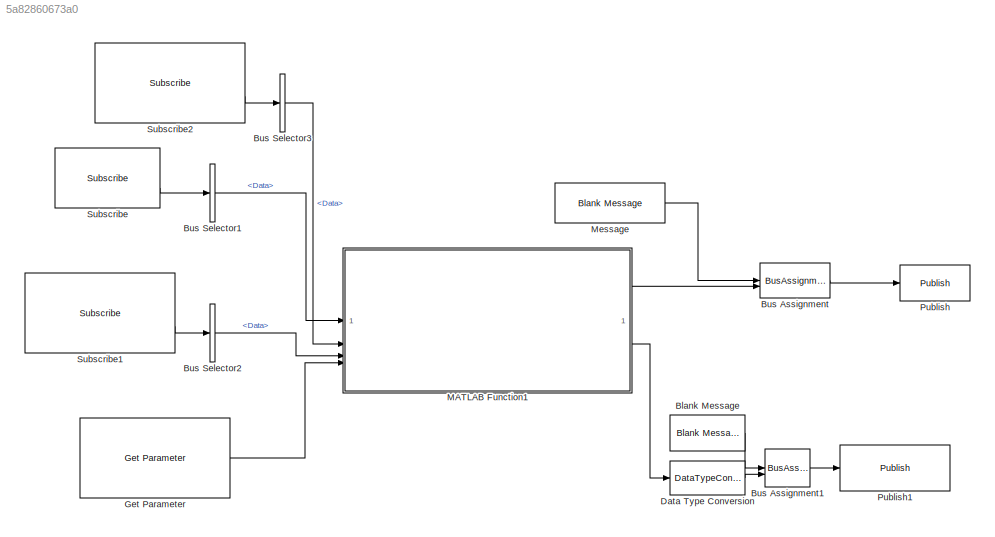
MODEL slx_5a82860673a0
KIND model
CONFIG AbsTol = auto
CONFIG EnableMultiTasking = off
CONFIG FixedStep = auto
CONFIG MaxStep = auto
CONFIG MinStep = auto
CONFIG RelTol = 1e-3
CONFIG SampleTimeConstraint = Unconstrained
CONFIG SolverName = FixedStepAuto
CONFIG StartTime = 0.0
CONFIG StopTime = 100.0
BLOCK [Reference] Blank Message  REF=robotlib/Blank Message
  LibrarySourceBlock = roslib/ROS/Blank Message
  SourceBlock = robotlib/Blank Message
  SourceType = ROS Blank Message
BLOCK [BusAssignment] Bus Assignment
  AssignedSignals = Data
BLOCK [BusAssignment] Bus Assignment1
  AssignedSignals = Data
BLOCK [BusSelector] Bus Selector1
  OutputSignals = Data
BLOCK [BusSelector] Bus Selector2
  OutputSignals = Data
BLOCK [BusSelector] Bus Selector3
  OutputSignals = Data
BLOCK [DataTypeConversion] Data Type Conversion
  RndMeth = Floor
  SaturateOnIntegerOverflow = off
BLOCK [Reference] Get Parameter  REF=robotlib/Get Parameter
  LibrarySourceBlock = roslib/ROS/Get Parameter
  SourceBlock = robotlib/Get Parameter
  SourceType = ROS Get Parameter
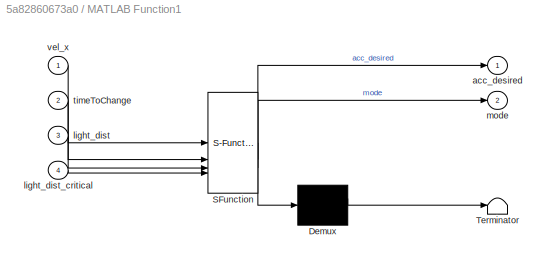
BLOCK [SubSystem] MATLAB Function1
  ErrorFcn = Stateflow.Translate.translate
  PermitHierarchicalResolution = ExplicitOnly
  SFBlockType = MATLAB Function
  TreatAsAtomicUnit = on
BLOCK [Demux] MATLAB Function1/ Demux 
  Outputs = 1
BLOCK [S-Function] MATLAB Function1/ SFunction 
  EnableBusSupport = on
  FunctionName = sf_sfun
  PortCounts = [4 3]
  SFcnIsStateOwnerBlock = off
  SFunctionDeploymentMode = off
  Tag = Stateflow S-Function 1
BLOCK [Terminator] MATLAB Function1/ Terminator 
BLOCK [Outport] MATLAB Function1/acc_desired
BLOCK [Inport] MATLAB Function1/light_dist
  Port = 3
BLOCK [Inport] MATLAB Function1/light_dist_critical
  Port = 4
BLOCK [Outport] MATLAB Function1/mode
  Port = 2
BLOCK [Inport] MATLAB Function1/timeToChange
  Port = 2
BLOCK [Inport] MATLAB Function1/vel_x
BLOCK [Reference] Message  REF=robotlib/Blank Message
  SourceBlock = robotlib/Blank Message
  SourceType = ROS Blank Message
BLOCK [Reference] Publish  REF=robotlib/Publish
  SourceBlock = robotlib/Publish
  SourceType = ROS Publish
BLOCK [Reference] Publish1  REF=robotlib/Publish
  LibrarySourceBlock = roslib/ROS/Publish
  SourceBlock = robotlib/Publish
  SourceType = ROS Publish
BLOCK [Reference] Subscribe  REF=robotlib/Subscribe
  SourceBlock = robotlib/Subscribe
  SourceType = ROS Subscribe
BLOCK [Reference] Subscribe1  REF=robotlib/Subscribe
  LibrarySourceBlock = roslib/ROS/Subscribe
  SourceBlock = robotlib/Subscribe
  SourceType = ROS Subscribe
BLOCK [Reference] Subscribe2  REF=robotlib/Subscribe
  LibrarySourceBlock = roslib/ROS/Subscribe
  SourceBlock = robotlib/Subscribe
  SourceType = ROS Subscribe
LINE Blank Message:1 -> Bus Assignment1:1
LINE Bus Assignment1:1 -> Publish1:1
LINE Bus Assignment:1 -> Publish:1
LINE Bus Selector1:1 -> MATLAB Function1:1
LINE Bus Selector2:1 -> MATLAB Function1:3
LINE Bus Selector3:1 -> MATLAB Function1:2
LINE Data Type Conversion:1 -> Bus Assignment1:2
LINE Get Parameter:1 -> MATLAB Function1:4
LINE MATLAB Function1:1 -> Bus Assignment:2
LINE MATLAB Function1:2 -> Data Type Conversion:1
LINE Message:1 -> Bus Assignment:1
LINE Subscribe1:2 -> Bus Selector2:1
LINE Subscribe2:2 -> Bus Selector3:1
LINE Subscribe:2 -> Bus Selector1:1
CHART MATLAB Function1 states=1 transitions=1
  STATE_LABEL 'eML_blk_kernel()'
  STATE_LABEL 'SCRIPT:\nfunction [acc_desired, mode] = light_pacing(vel_x, timeToChange, light_dist, light_dist_critical)\n\n    % JMS: this is calculated better in the model\n    % Read the current simulation time and stop light distance from input\n    %time_step = 1;\n    %sim_time = sim_time_read;\n\n    % using old var names but more consistent input names\n    stop_light_distance = light_dist;\n    vel_ego = vel_x;\n...<+1758ch>'
CHART  states=0 transitions=0
